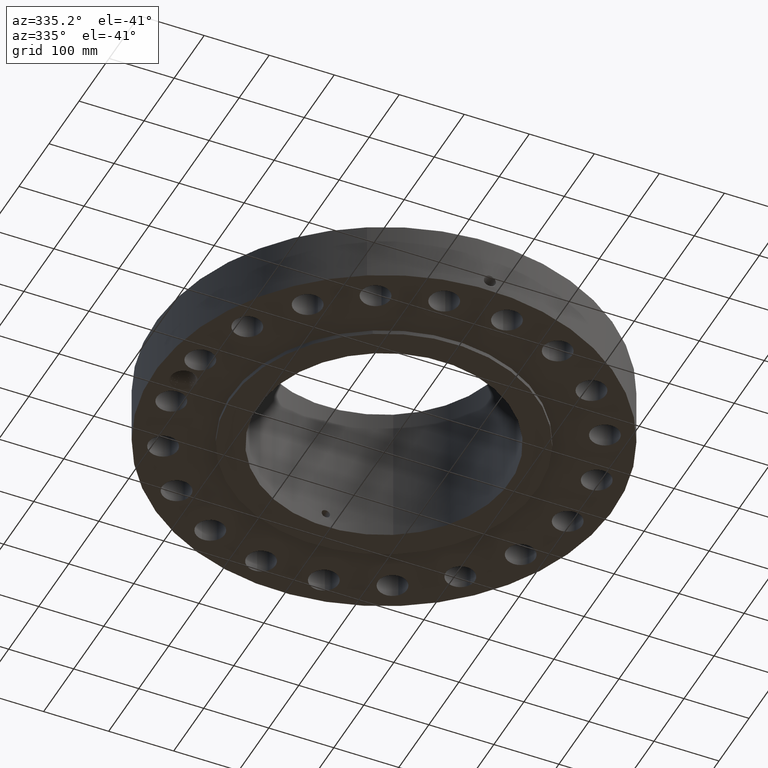
[diagram: clean part render]
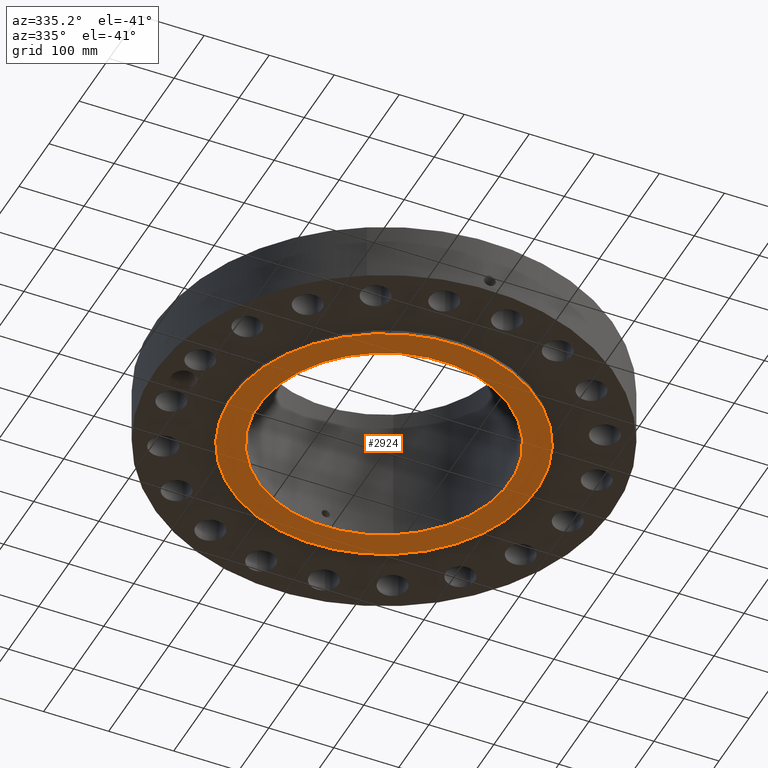
[diagram: same view with one face highlighted and labeled with its STEP entity id]
A machine part, auxiliary view. The second image highlights one B-rep face of the part: STEP entity #2924.
In plain terms, the highlighted planar face has unit normal (0, 0, -1).
Its self-contained STEP definition (entity closure, byte-faithful):
#1587=AXIS2_PLACEMENT_3D('Circle Axis2P3D',#1585,#1586,$) ;
#1613=AXIS2_PLACEMENT_3D('Circle Axis2P3D',#1611,#1612,$) ;
#2900=AXIS2_PLACEMENT_3D('Plane Axis2P3D',#2897,#2898,#2899) ;
#2908=AXIS2_PLACEMENT_3D('Circle Axis2P3D',#2906,#2907,$) ;
#2917=AXIS2_PLACEMENT_3D('Circle Axis2P3D',#2915,#2916,$) ;
#1585=CARTESIAN_POINT('Axis2P3D Location',(0.,0.,1.1189649382E-015)) ;
#1589=CARTESIAN_POINT('Vertex',(4.43468623211,8.11763869752,5.59482469102E-016)) ;
#1591=CARTESIAN_POINT('Vertex',(-4.43468623211,-8.11763869752,5.59482469102E-016)) ;
#1611=CARTESIAN_POINT('Axis2P3D Location',(0.,0.,1.1189649382E-015)) ;
#2897=CARTESIAN_POINT('Axis2P3D Location',(0.,7.62500000003,0.)) ;
#2906=CARTESIAN_POINT('Axis2P3D Location',(0.,0.,0.)) ;
#2910=CARTESIAN_POINT('Vertex',(3.65561973187,6.69156703444,-3.69258429608E-014)) ;
#2912=CARTESIAN_POINT('Vertex',(-3.65561973187,-6.69156703444,-3.69258429608E-014)) ;
#2915=CARTESIAN_POINT('Axis2P3D Location',(0.,0.,0.)) ;
#1586=DIRECTION('Axis2P3D Direction',(0.,0.,-0.0393700787402)) ;
#1612=DIRECTION('Axis2P3D Direction',(0.,0.,-0.0393700787402)) ;
#2898=DIRECTION('Axis2P3D Direction',(0.,0.,-0.0393700787402)) ;
#2899=DIRECTION('Axis2P3D XDirection',(0.0393700787402,0.,0.)) ;
#2907=DIRECTION('Axis2P3D Direction',(0.,0.,-0.0393700787402)) ;
#2916=DIRECTION('Axis2P3D Direction',(0.,0.,-0.0393700787402)) ;
#2903=ORIENTED_EDGE('',*,*,#1615,.T.) ;
#2904=ORIENTED_EDGE('',*,*,#1593,.T.) ;
#2921=ORIENTED_EDGE('',*,*,#2914,.F.) ;
#2922=ORIENTED_EDGE('',*,*,#2919,.F.) ;
#2923=FACE_BOUND('',#2920,.T.) ;
#2924=ADVANCED_FACE('PartBody',(#2905,#2923),#2901,.T.) ;
#1588=CIRCLE('generated circle',#1587,9.25000000004) ;
#1614=CIRCLE('generated circle',#1613,9.25000000004) ;
#2909=CIRCLE('generated circle',#2908,7.62500000003) ;
#2918=CIRCLE('generated circle',#2917,7.62500000003) ;
#1593=EDGE_CURVE('',#1590,#1592,#1588,.T.) ;
#1615=EDGE_CURVE('',#1592,#1590,#1614,.T.) ;
#2914=EDGE_CURVE('',#2911,#2913,#2909,.T.) ;
#2919=EDGE_CURVE('',#2913,#2911,#2918,.T.) ;
#2902=EDGE_LOOP('',(#2903,#2904)) ;
#2920=EDGE_LOOP('',(#2921,#2922)) ;
#2905=FACE_OUTER_BOUND('',#2902,.T.) ;
#2901=PLANE('',#2900) ;
#1590=VERTEX_POINT('',#1589) ;
#1592=VERTEX_POINT('',#1591) ;
#2911=VERTEX_POINT('',#2910) ;
#2913=VERTEX_POINT('',#2912) ;